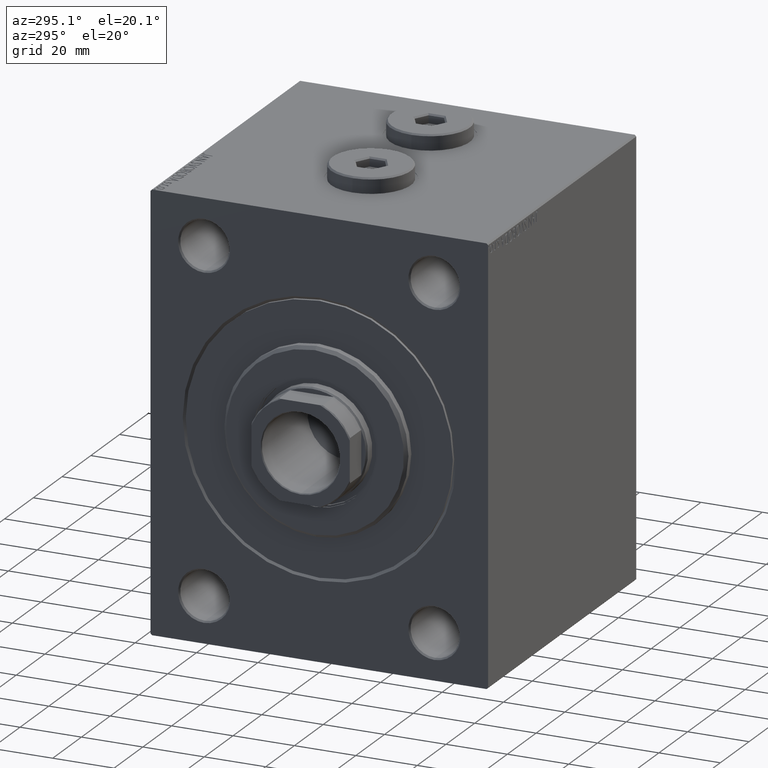
[diagram: clean part render]
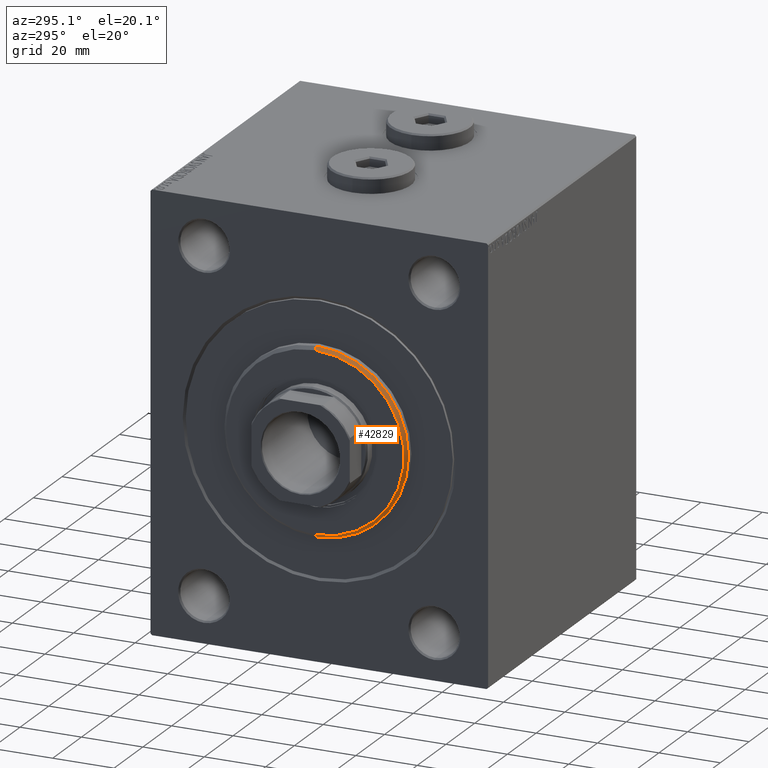
[diagram: same view with one face highlighted and labeled with its STEP entity id]
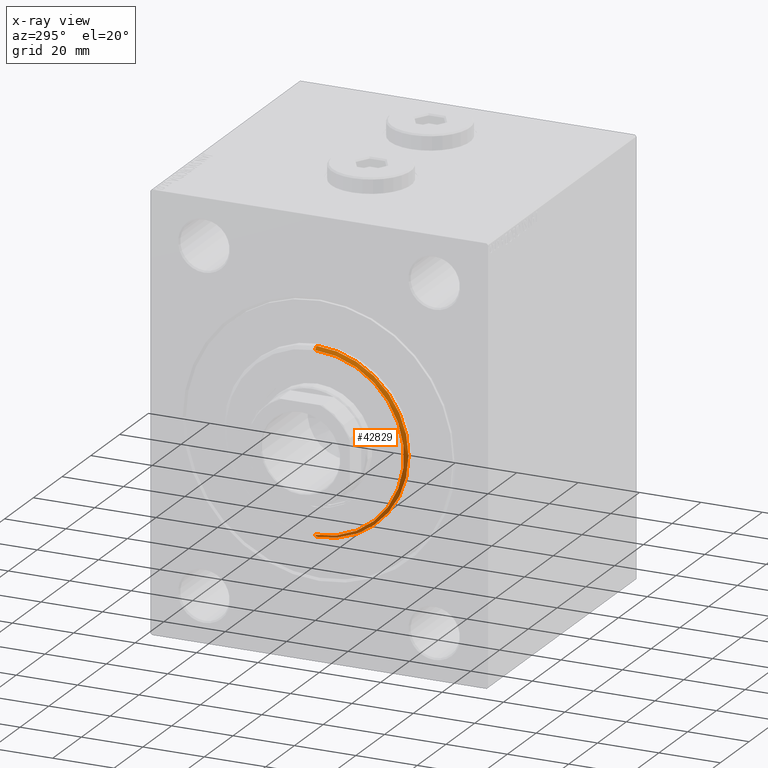
[diagram: x-ray of the same camera — body ghosted, the highlighted face saturated]
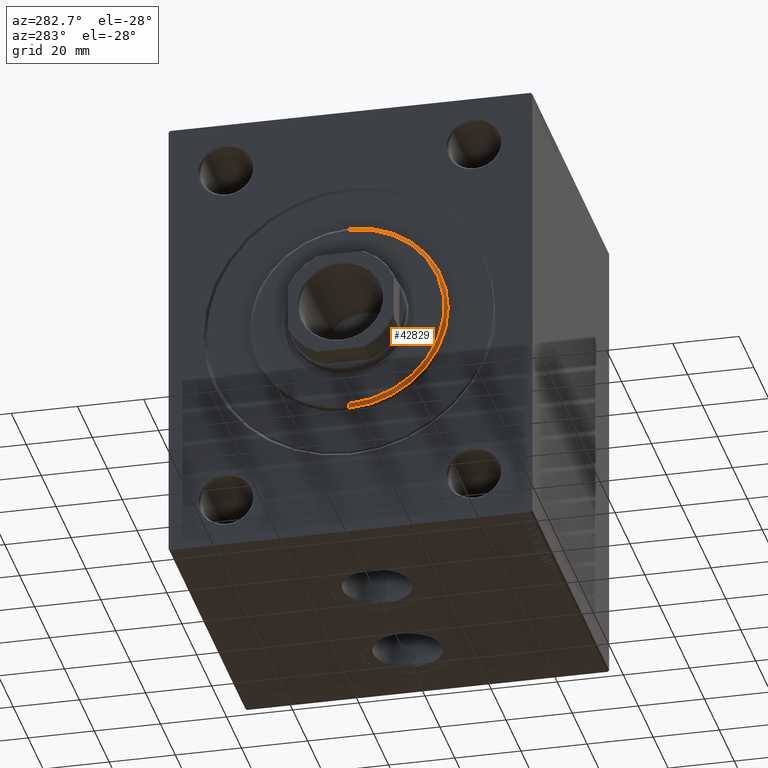
[diagram: same view with one face highlighted and labeled with its STEP entity id]
A machine part, auxiliary view. The second image highlights one B-rep face of the part: STEP entity #42829.
The next image is the same camera in x-ray: the body ghosted, the highlighted face saturated — about 0% of this face is hidden behind the body in this view.
A second angle (auxiliary view) of the same face is appended — the face is thin or edge-on in the first view.
In plain terms, the highlighted conical surface has half-angle 45 deg.
Its self-contained STEP definition (entity closure, byte-faithful):
#86 = ORIENTED_EDGE ( 'NONE', *, *, #31380, .F. ) ;
#353 = CARTESIAN_POINT ( 'NONE',  ( 3.000000000000000000, 0.000000000000000000, 29.00000000000002132 ) ) ;
#1009 = DIRECTION ( 'NONE',  ( -0.7071067811865487940, 8.659560562354918067E-17, -0.7071067811865463515 ) ) ;
#2028 = EDGE_LOOP ( 'NONE', ( #34598, #12385, #4184, #86 ) ) ;
#2157 = VERTEX_POINT ( 'NONE', #353 ) ;
#4184 = ORIENTED_EDGE ( 'NONE', *, *, #20264, .F. ) ;
#4302 = DIRECTION ( 'NONE',  ( 0.000000000000000000, 0.000000000000000000, -1.000000000000000000 ) ) ;
#4718 = AXIS2_PLACEMENT_3D ( 'NONE', #28550, #42601, #38690 ) ;
#5486 = CONICAL_SURFACE ( 'NONE', #4718, 29.00000000000002132, 0.7853981633974466137 ) ;
#6985 = LINE ( 'NONE', #35289, #26562 ) ;
#12385 = ORIENTED_EDGE ( 'NONE', *, *, #17174, .T. ) ;
#13153 = AXIS2_PLACEMENT_3D ( 'NONE', #21330, #38587, #4302 ) ;
#16787 = AXIS2_PLACEMENT_3D ( 'NONE', #28547, #21200, #35242 ) ;
#17174 = EDGE_CURVE ( 'NONE', #26775, #42165, #21931, .T. ) ;
#17974 = FACE_OUTER_BOUND ( 'NONE', #2028, .T. ) ;
#18857 = EDGE_CURVE ( 'NONE', #26775, #2157, #21887, .T. ) ;
#20264 = EDGE_CURVE ( 'NONE', #34720, #42165, #32971, .T. ) ;
#21200 = DIRECTION ( 'NONE',  ( 1.000000000000000000, -0.000000000000000000, 0.000000000000000000 ) ) ;
#21330 = CARTESIAN_POINT ( 'NONE',  ( 2.000000000000019984, 0.000000000000000000, 0.000000000000000000 ) ) ;
#21887 = CIRCLE ( 'NONE', #16787, 29.00000000000002132 ) ;
#21931 = LINE ( 'NONE', #31824, #44668 ) ;
#26562 = VECTOR ( 'NONE', #34834, 1000.000000000000000 ) ;
#26668 = CARTESIAN_POINT ( 'NONE',  ( 3.000000000000000000, 3.612708057484693181E-15, -29.00000000000002132 ) ) ;
#26775 = VERTEX_POINT ( 'NONE', #26668 ) ;
#27079 = CARTESIAN_POINT ( 'NONE',  ( 2.000000000000019984, 3.673940397442059178E-15, -30.00000000000000000 ) ) ;
#28547 = CARTESIAN_POINT ( 'NONE',  ( 3.000000000000000000, 0.000000000000000000, 0.000000000000000000 ) ) ;
#28550 = CARTESIAN_POINT ( 'NONE',  ( 3.000000000000000000, 0.000000000000000000, 0.000000000000000000 ) ) ;
#31380 = EDGE_CURVE ( 'NONE', #2157, #34720, #6985, .T. ) ;
#31824 = CARTESIAN_POINT ( 'NONE',  ( 3.000000000000000000, 3.551475717527327185E-15, -29.00000000000002132 ) ) ;
#32971 = CIRCLE ( 'NONE', #13153, 30.00000000000000000 ) ;
#34598 = ORIENTED_EDGE ( 'NONE', *, *, #18857, .F. ) ;
#34720 = VERTEX_POINT ( 'NONE', #44150 ) ;
#34834 = DIRECTION ( 'NONE',  ( -0.7071067811865487940, 0.000000000000000000, 0.7071067811865463515 ) ) ;
#35242 = DIRECTION ( 'NONE',  ( 0.000000000000000000, 0.000000000000000000, -1.000000000000000000 ) ) ;
#35289 = CARTESIAN_POINT ( 'NONE',  ( 3.000000000000000000, 0.000000000000000000, 29.00000000000002132 ) ) ;
#38587 = DIRECTION ( 'NONE',  ( -1.000000000000000000, 0.000000000000000000, 0.000000000000000000 ) ) ;
#38690 = DIRECTION ( 'NONE',  ( 0.000000000000000000, 0.000000000000000000, 1.000000000000000000 ) ) ;
#42165 = VERTEX_POINT ( 'NONE', #27079 ) ;
#42601 = DIRECTION ( 'NONE',  ( -1.000000000000000000, 0.000000000000000000, 0.000000000000000000 ) ) ;
#42829 = ADVANCED_FACE ( 'NONE', ( #17974 ), #5486, .T. ) ;
#44150 = CARTESIAN_POINT ( 'NONE',  ( 2.000000000000019984, 0.000000000000000000, 30.00000000000000000 ) ) ;
#44668 = VECTOR ( 'NONE', #1009, 1000.000000000000000 ) ;